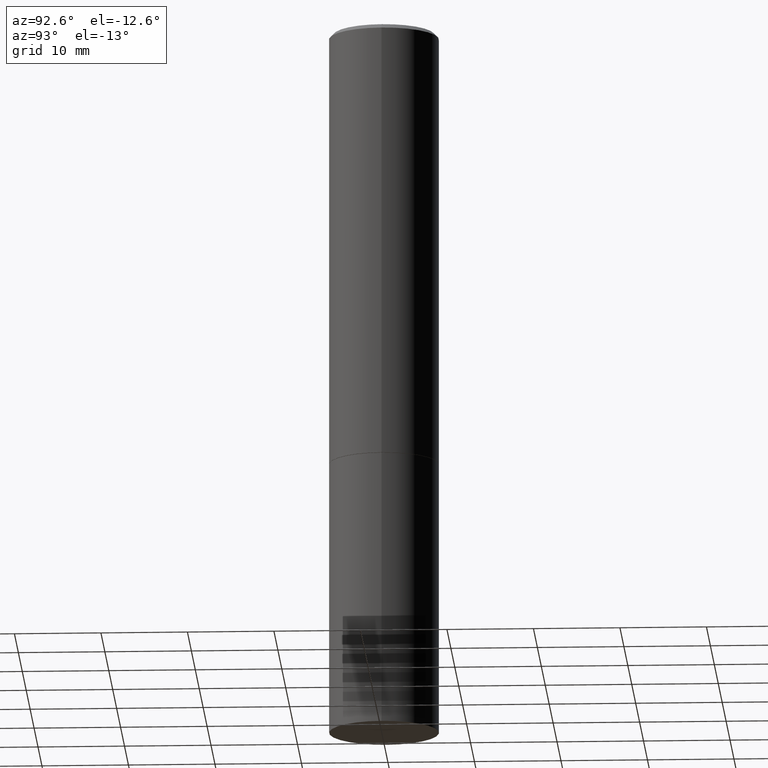
[diagram: clean part render]
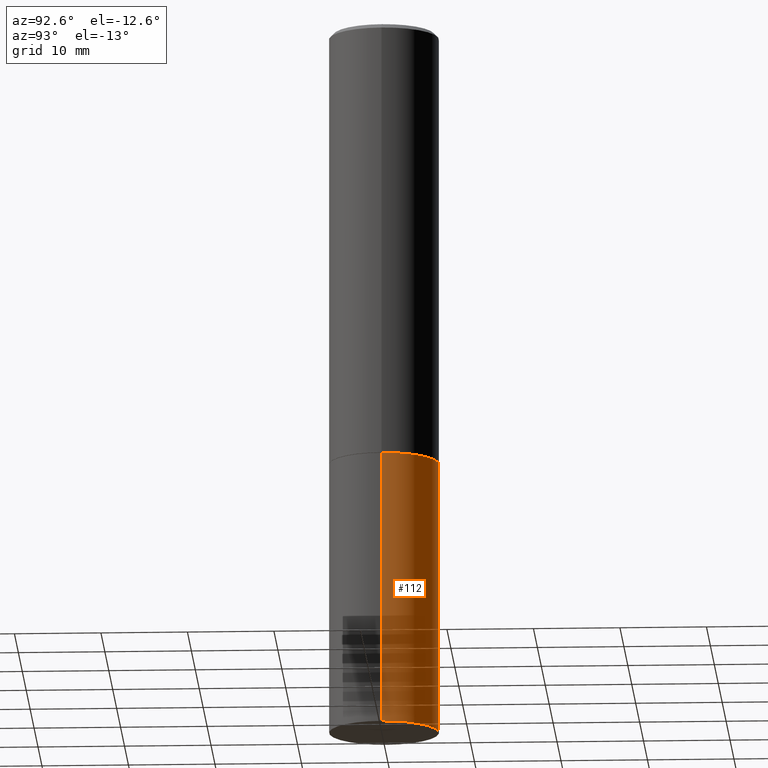
[diagram: same view with one face highlighted and labeled with its STEP entity id]
A machine part, auxiliary view. The second image highlights one B-rep face of the part: STEP entity #112.
In plain terms, the highlighted cylindrical surface (partial cylindrical patch) has radius 6.35 mm, axis along (-0, 0, 1).
Its self-contained STEP definition (entity closure, byte-faithful):
#6 = DIRECTION ( 'NONE',  ( -2.445468806185136877E-29, 3.491481338843145188E-15, 1.000000000000000000 ) ) ;
#12 = DIRECTION ( 'NONE',  ( 1.000000000000000000, -6.982962677686266711E-15, 4.876176775795935793E-29 ) ) ;
#33 = EDGE_CURVE ( 'NONE', #227, #286, #107, .T. ) ;
#39 = VECTOR ( 'NONE', #6, 39.37007874015748143 ) ;
#62 = EDGE_CURVE ( 'NONE', #227, #135, #162, .T. ) ;
#68 = DIRECTION ( 'NONE',  ( 1.000000000000000000, -6.982962677686262766E-15, 0.000000000000000000 ) ) ;
#73 = DIRECTION ( 'NONE',  ( 1.000000000000000000, -6.982962677686266711E-15, 0.000000000000000000 ) ) ;
#75 = VECTOR ( 'NONE', #295, 39.37007874015748143 ) ;
#81 = ORIENTED_EDGE ( 'NONE', *, *, #62, .F. ) ;
#82 = LINE ( 'NONE', #238, #75 ) ;
#95 = CARTESIAN_POINT ( 'NONE',  ( 4.890937612370273194E-29, -6.982962677686291165E-15, -2.000000000000000000 ) ) ;
#107 = CIRCLE ( 'NONE', #358, 0.2500000000000000000 ) ;
#110 = EDGE_LOOP ( 'NONE', ( #216, #114, #118, #81 ) ) ;
#112 = ADVANCED_FACE ( 'NONE', ( #242 ), #255, .T. ) ;
#114 = ORIENTED_EDGE ( 'NONE', *, *, #338, .T. ) ;
#115 = CARTESIAN_POINT ( 'NONE',  ( 0.2500000000000000000, -1.309305502066178953E-14, -3.250000000000000000 ) ) ;
#118 = ORIENTED_EDGE ( 'NONE', *, *, #122, .F. ) ;
#122 = EDGE_CURVE ( 'NONE', #135, #353, #137, .T. ) ;
#134 = DIRECTION ( 'NONE',  ( -2.445468806185136597E-29, 3.491481338843145583E-15, 1.000000000000000000 ) ) ;
#135 = VERTEX_POINT ( 'NONE', #234 ) ;
#137 = CIRCLE ( 'NONE', #293, 0.2500000000000000000 ) ;
#162 = LINE ( 'NONE', #167, #39 ) ;
#167 = CARTESIAN_POINT ( 'NONE',  ( 0.2500000000000000000, -1.745740669421566678E-15, 1.219044193948983948E-29 ) ) ;
#189 = AXIS2_PLACEMENT_3D ( 'NONE', #221, #134, #12 ) ;
#191 = DIRECTION ( 'NONE',  ( -2.445468806185136597E-29, 3.491481338843145583E-15, 1.000000000000000000 ) ) ;
#212 = CARTESIAN_POINT ( 'NONE',  ( -0.2500000000000000000, -7.388781675063007725E-15, -2.000000000000000000 ) ) ;
#216 = ORIENTED_EDGE ( 'NONE', *, *, #33, .T. ) ;
#220 = CARTESIAN_POINT ( 'NONE',  ( -0.2500000000000000000, -7.388781675063007725E-15, -3.250000000000000000 ) ) ;
#221 = CARTESIAN_POINT ( 'NONE',  ( 0.000000000000000000, 0.000000000000000000, 0.000000000000000000 ) ) ;
#227 = VERTEX_POINT ( 'NONE', #115 ) ;
#234 = CARTESIAN_POINT ( 'NONE',  ( 0.2500000000000000000, -8.728703347107857054E-15, -2.000000000000000000 ) ) ;
#238 = CARTESIAN_POINT ( 'NONE',  ( -0.2500000000000000000, 1.776356839400250465E-15, -1.229733772563726445E-29 ) ) ;
#242 = FACE_OUTER_BOUND ( 'NONE', #110, .T. ) ;
#255 = CYLINDRICAL_SURFACE ( 'NONE', #189, 0.2500000000000000000 ) ;
#256 = CARTESIAN_POINT ( 'NONE',  ( 7.947773620101693940E-29, -1.134731435124022443E-14, -3.250000000000000000 ) ) ;
#286 = VERTEX_POINT ( 'NONE', #220 ) ;
#293 = AXIS2_PLACEMENT_3D ( 'NONE', #95, #319, #73 ) ;
#295 = DIRECTION ( 'NONE',  ( -2.445468806185136877E-29, 3.491481338843145188E-15, 1.000000000000000000 ) ) ;
#319 = DIRECTION ( 'NONE',  ( -2.445468806185136597E-29, 3.491481338843145583E-15, 1.000000000000000000 ) ) ;
#338 = EDGE_CURVE ( 'NONE', #286, #353, #82, .T. ) ;
#353 = VERTEX_POINT ( 'NONE', #212 ) ;
#358 = AXIS2_PLACEMENT_3D ( 'NONE', #256, #191, #68 ) ;